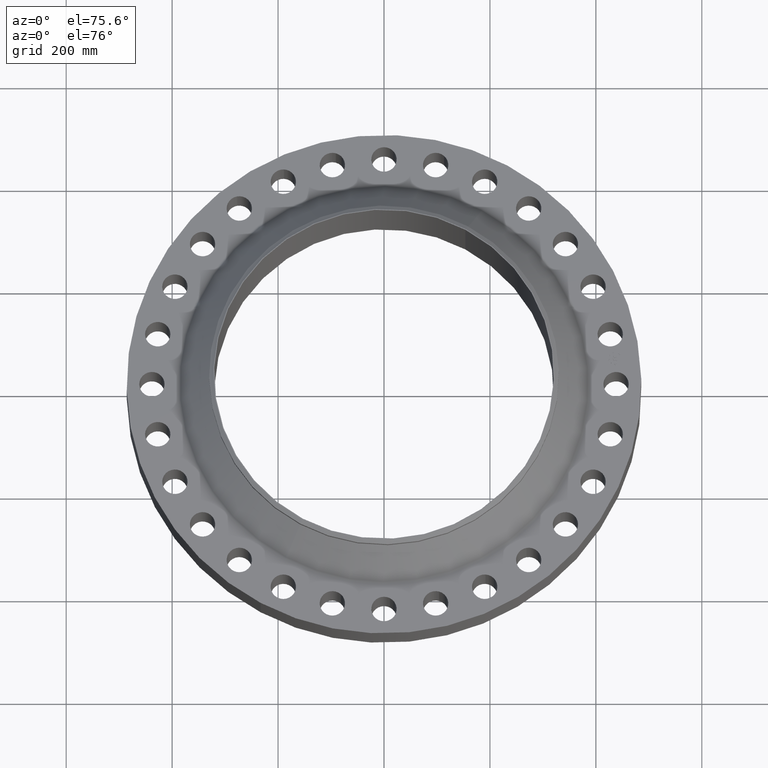
[diagram: clean part render]
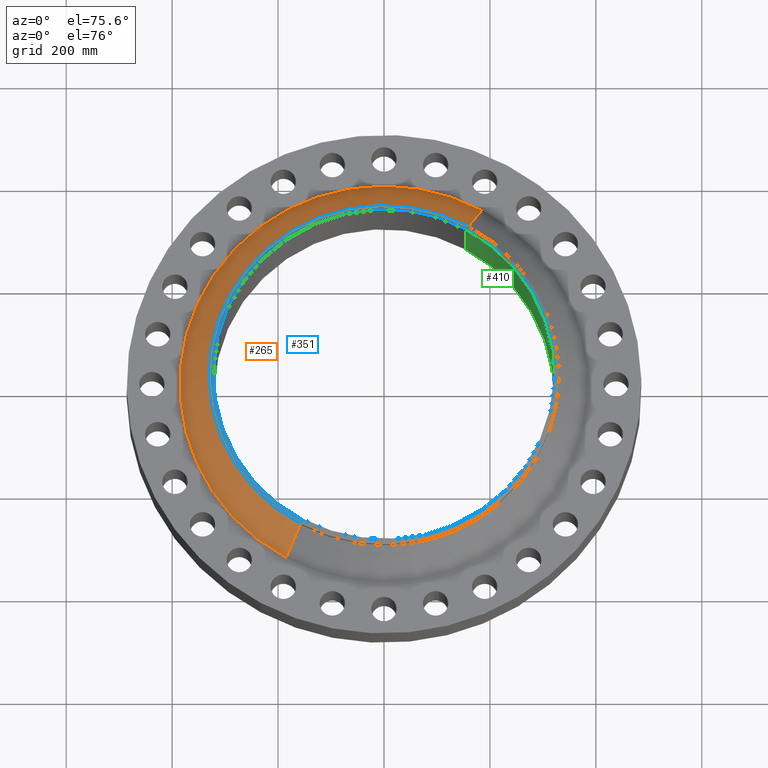
[diagram: same view with three faces highlighted in distinct colors, each labeled with its STEP entity id]
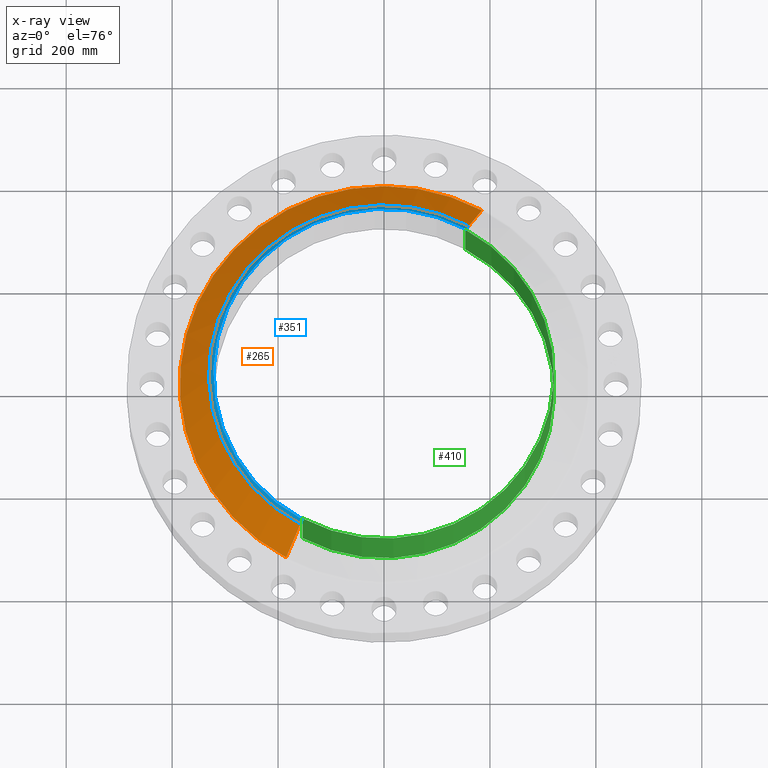
[diagram: x-ray of the same camera — body ghosted, the three highlighted faces saturated]
A machine part, auxiliary view with three faces highlighted in distinct colors.
The next image is the same camera in x-ray (body ghosted, the three faces saturated) — at least one of them is partly hidden behind the body in this view.
Their STEP definitions:

[orange] entity #265 — the highlighted conical surface has half-angle 41.715 deg.
#184=CARTESIAN_POINT('Vertex',(184.797499506,338.269553849,73.4985236831)) ;
#191=CARTESIAN_POINT('Vertex',(-184.797499506,-338.269553849,73.4985236831)) ;
#211=CARTESIAN_POINT('Axis2P3D Location',(0.,0.,73.4985236831)) ;
#223=CARTESIAN_POINT('Axis2P3D Location',(0.,0.,135.483342033)) ;
#228=CARTESIAN_POINT('Line Origine',(171.551906177,314.023657893,104.490932858)) ;
#232=CARTESIAN_POINT('Vertex',(158.306312848,289.777761937,135.483342033)) ;
#239=CARTESIAN_POINT('Vertex',(-158.306312848,-289.777761937,135.483342033)) ;
#242=CARTESIAN_POINT('Line Origine',(-171.551906177,-314.023657893,104.490932858)) ;
#254=CARTESIAN_POINT('Axis2P3D Location',(0.,0.,135.483342033)) ;
#212=DIRECTION('Axis2P3D Direction',(0.,0.,-1.)) ;
#224=DIRECTION('Axis2P3D Direction',(0.,0.,-1.)) ;
#225=DIRECTION('Axis2P3D XDirection',(0.479425538604,0.87758256189,0.)) ;
#229=DIRECTION('Vector Direction',(0.31902382035,0.583969186085,-0.746460844085)) ;
#243=DIRECTION('Vector Direction',(-0.31902382035,-0.583969186085,-0.746460844085)) ;
#255=DIRECTION('Axis2P3D Direction',(0.,0.,-1.)) ;
#213=AXIS2_PLACEMENT_3D('Circle Axis2P3D',#211,#212,$) ;
#226=AXIS2_PLACEMENT_3D('Cone Axis2P3D',#223,#224,#225) ;
#256=AXIS2_PLACEMENT_3D('Circle Axis2P3D',#254,#255,$) ;
#260=ORIENTED_EDGE('',*,*,#215,.F.) ;
#261=ORIENTED_EDGE('',*,*,#246,.T.) ;
#262=ORIENTED_EDGE('',*,*,#258,.T.) ;
#263=ORIENTED_EDGE('',*,*,#234,.F.) ;
#230=VECTOR('Line Direction',#229,1.) ;
#244=VECTOR('Line Direction',#243,1.) ;
#265=ADVANCED_FACE('PartBody',(#264),#227,.T.) ;
#214=CIRCLE('generated circle',#213,385.45610241) ;
#257=CIRCLE('generated circle',#256,330.200000001) ;
#227=CONICAL_SURFACE('Cone',#226,330.200000001,0.728068839858) ;
#215=EDGE_CURVE('',#192,#185,#214,.T.) ;
#234=EDGE_CURVE('',#185,#233,#231,.F.) ;
#246=EDGE_CURVE('',#192,#240,#245,.F.) ;
#258=EDGE_CURVE('',#240,#233,#257,.T.) ;
#259=EDGE_LOOP('',(#260,#261,#262,#263)) ;
#264=FACE_OUTER_BOUND('',#259,.T.) ;
#231=LINE('Line',#228,#230) ;
#245=LINE('Line',#242,#244) ;
#185=VERTEX_POINT('',#184) ;
#192=VERTEX_POINT('',#191) ;
#233=VERTEX_POINT('',#232) ;
#240=VERTEX_POINT('',#239) ;

[blue] entity #351 — the highlighted conical surface has half-angle 52.5 deg.
#275=CARTESIAN_POINT('Vertex',(-158.306312848,-289.777761937,141.483342033)) ;
#282=CARTESIAN_POINT('Vertex',(158.306312848,289.777761937,141.483342033)) ;
#297=CARTESIAN_POINT('Axis2P3D Location',(0.,0.,141.483342033)) ;
#309=CARTESIAN_POINT('Axis2P3D Location',(0.,0.,147.574000001)) ;
#314=CARTESIAN_POINT('Line Origine',(158.539105076,290.203885253,141.110754958)) ;
#318=CARTESIAN_POINT('Vertex',(154.500872635,282.811950352,147.574000001)) ;
#325=CARTESIAN_POINT('Vertex',(-154.500872635,-282.811950352,147.574000001)) ;
#328=CARTESIAN_POINT('Line Origine',(-158.539105076,-290.203885253,141.110754958)) ;
#340=CARTESIAN_POINT('Axis2P3D Location',(0.,0.,147.574000001)) ;
#298=DIRECTION('Axis2P3D Direction',(0.,0.,-1.)) ;
#310=DIRECTION('Axis2P3D Direction',(-0.,-0.,-1.)) ;
#311=DIRECTION('Axis2P3D XDirection',(0.479425538604,0.87758256189,0.)) ;
#315=DIRECTION('Vector Direction',(0.380353852473,0.696233056857,-0.608761429009)) ;
#329=DIRECTION('Vector Direction',(-0.380353852473,-0.696233056857,-0.608761429009)) ;
#341=DIRECTION('Axis2P3D Direction',(0.,-0.,-1.)) ;
#299=AXIS2_PLACEMENT_3D('Circle Axis2P3D',#297,#298,$) ;
#312=AXIS2_PLACEMENT_3D('Cone Axis2P3D',#309,#310,#311) ;
#342=AXIS2_PLACEMENT_3D('Circle Axis2P3D',#340,#341,$) ;
#346=ORIENTED_EDGE('',*,*,#332,.F.) ;
#347=ORIENTED_EDGE('',*,*,#344,.T.) ;
#348=ORIENTED_EDGE('',*,*,#320,.T.) ;
#349=ORIENTED_EDGE('',*,*,#301,.F.) ;
#316=VECTOR('Line Direction',#315,1.) ;
#330=VECTOR('Line Direction',#329,1.) ;
#351=ADVANCED_FACE('PartBody',(#350),#313,.T.) ;
#300=CIRCLE('generated circle',#299,330.200000001) ;
#343=CIRCLE('generated circle',#342,322.262500001) ;
#313=CONICAL_SURFACE('Cone',#312,322.262500001,0.916297857297) ;
#301=EDGE_CURVE('',#276,#283,#300,.T.) ;
#320=EDGE_CURVE('',#319,#283,#317,.T.) ;
#332=EDGE_CURVE('',#326,#276,#331,.T.) ;
#344=EDGE_CURVE('',#326,#319,#343,.T.) ;
#345=EDGE_LOOP('',(#346,#347,#348,#349)) ;
#350=FACE_OUTER_BOUND('',#345,.T.) ;
#317=LINE('Line',#314,#316) ;
#331=LINE('Line',#328,#330) ;
#276=VERTEX_POINT('',#275) ;
#283=VERTEX_POINT('',#282) ;
#319=VERTEX_POINT('',#318) ;
#326=VERTEX_POINT('',#325) ;

[green] entity #410 — the highlighted cylindrical surface (partial cylindrical patch) has radius 320.675 mm, axis along (0, 0, -1).
#365=CARTESIAN_POINT('Vertex',(-153.739784593,-281.418788035,147.574000001)) ;
#367=CARTESIAN_POINT('Vertex',(153.739784593,281.418788035,147.574000001)) ;
#370=CARTESIAN_POINT('Axis2P3D Location',(0.,-3.5527136788E-014,147.574000001)) ;
#380=CARTESIAN_POINT('Axis2P3D Location',(0.,0.,74.2632500003)) ;
#385=CARTESIAN_POINT('Line Origine',(153.739784593,281.418788035,74.2632500003)) ;
#389=CARTESIAN_POINT('Vertex',(153.739784593,281.418788035,-1.58750000001)) ;
#392=CARTESIAN_POINT('Axis2P3D Location',(0.,0.,-1.58750000001)) ;
#396=CARTESIAN_POINT('Vertex',(-153.739784593,-281.418788035,-1.58750000001)) ;
#399=CARTESIAN_POINT('Line Origine',(-153.739784593,-281.418788035,74.2632500003)) ;
#371=DIRECTION('Axis2P3D Direction',(0.,-0.,-1.)) ;
#381=DIRECTION('Axis2P3D Direction',(0.,0.,-1.)) ;
#382=DIRECTION('Axis2P3D XDirection',(0.479425538604,0.87758256189,0.)) ;
#386=DIRECTION('Vector Direction',(0.,0.,-1.)) ;
#393=DIRECTION('Axis2P3D Direction',(0.,0.,-1.)) ;
#400=DIRECTION('Vector Direction',(0.,0.,-1.)) ;
#372=AXIS2_PLACEMENT_3D('Circle Axis2P3D',#370,#371,$) ;
#383=AXIS2_PLACEMENT_3D('Cylinder Axis2P3D',#380,#381,#382) ;
#394=AXIS2_PLACEMENT_3D('Circle Axis2P3D',#392,#393,$) ;
#405=ORIENTED_EDGE('',*,*,#391,.T.) ;
#406=ORIENTED_EDGE('',*,*,#398,.T.) ;
#407=ORIENTED_EDGE('',*,*,#403,.F.) ;
#408=ORIENTED_EDGE('',*,*,#374,.F.) ;
#387=VECTOR('Line Direction',#386,1.) ;
#401=VECTOR('Line Direction',#400,1.) ;
#410=ADVANCED_FACE('PartBody',(#409),#384,.F.) ;
#373=CIRCLE('generated circle',#372,320.675000001) ;
#395=CIRCLE('generated circle',#394,320.675000001) ;
#384=CYLINDRICAL_SURFACE('generated cylinder',#383,320.675000001) ;
#374=EDGE_CURVE('',#368,#366,#373,.T.) ;
#391=EDGE_CURVE('',#368,#390,#388,.T.) ;
#398=EDGE_CURVE('',#390,#397,#395,.T.) ;
#403=EDGE_CURVE('',#366,#397,#402,.T.) ;
#404=EDGE_LOOP('',(#405,#406,#407,#408)) ;
#409=FACE_OUTER_BOUND('',#404,.T.) ;
#388=LINE('Line',#385,#387) ;
#402=LINE('Line',#399,#401) ;
#366=VERTEX_POINT('',#365) ;
#368=VERTEX_POINT('',#367) ;
#390=VERTEX_POINT('',#389) ;
#397=VERTEX_POINT('',#396) ;